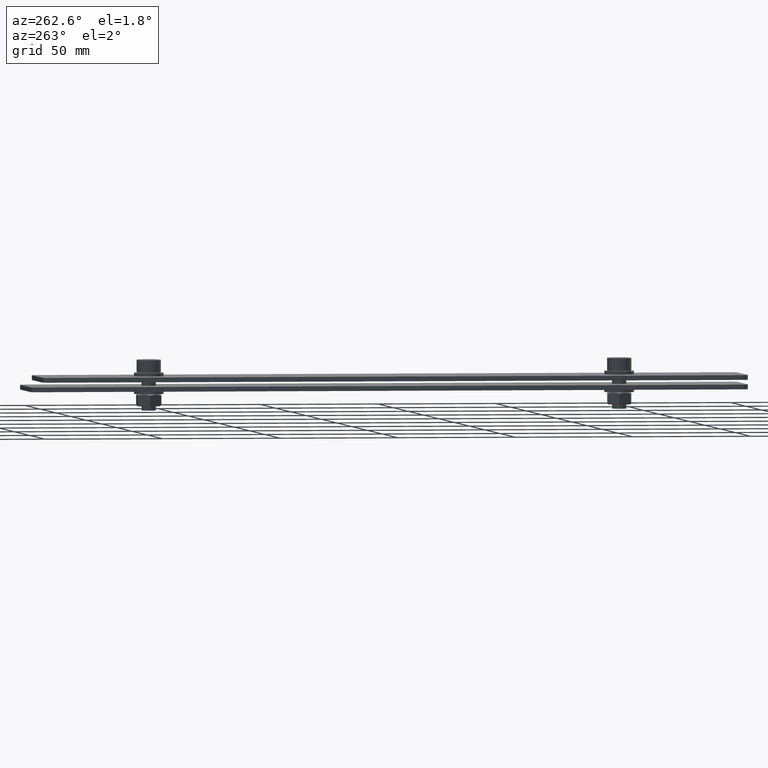
[diagram: clean part render]
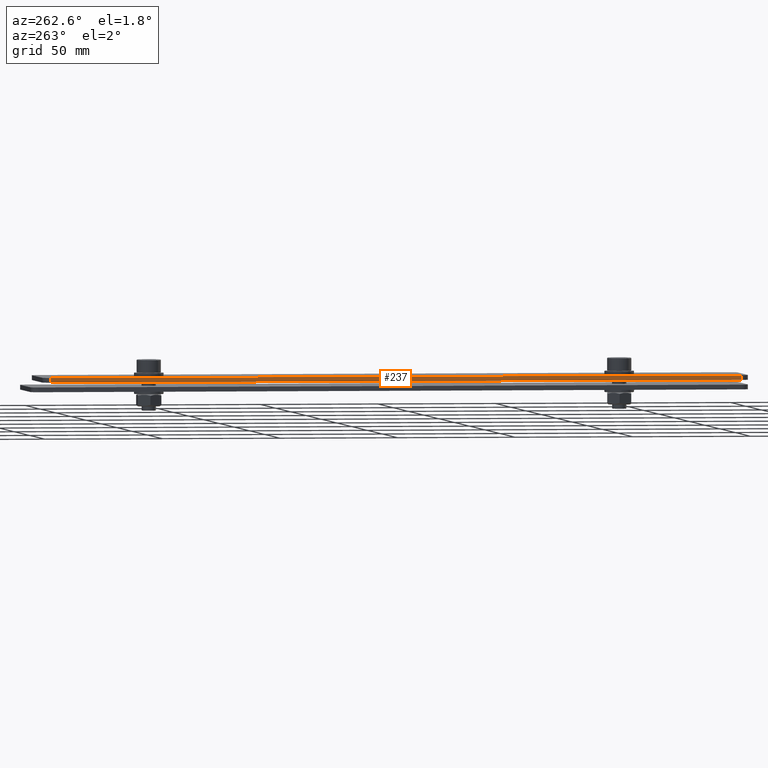
[diagram: same view with one face highlighted and labeled with its STEP entity id]
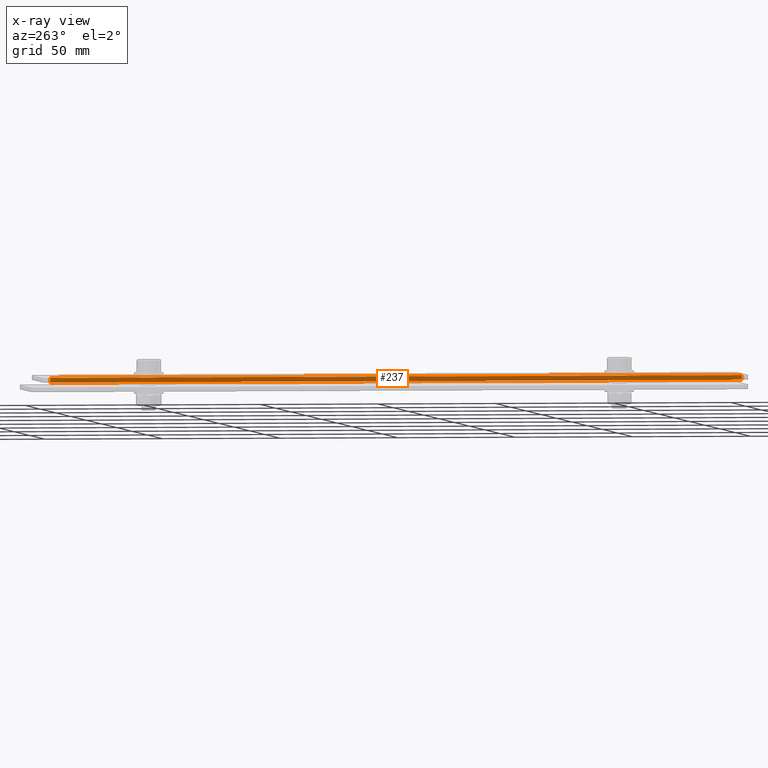
[diagram: x-ray of the same camera — body ghosted, the highlighted face saturated]
A machine part, auxiliary view. The second image highlights one B-rep face of the part: STEP entity #237.
The next image is the same camera in x-ray: the body ghosted, the highlighted face saturated — about 0% of this face is hidden behind the body in this view.
In plain terms, the highlighted planar face has unit normal (-1, 0, 0).
Its self-contained STEP definition (entity closure, byte-faithful):
#49 = CARTESIAN_POINT ( 'NONE',  ( -40.00000000000000000, -123.5000000000000000, 2.000000000000000444 ) ) ;
#54 = CARTESIAN_POINT ( 'NONE',  ( -40.00000000000000000, -123.5000000000000000, 4.000000000000000000 ) ) ;
#91 = VECTOR ( 'NONE', #1002, 1000.000000000000000 ) ;
#154 = VERTEX_POINT ( 'NONE', #54 ) ;
#237 = ADVANCED_FACE ( 'NONE', ( #1996 ), #416, .T. ) ;
#317 = VERTEX_POINT ( 'NONE', #1486 ) ;
#416 = PLANE ( 'NONE',  #1739 ) ;
#436 = LINE ( 'NONE', #2803, #1316 ) ;
#462 = DIRECTION ( 'NONE',  ( 3.813944420627395867E-17, -1.379055869979733316E-18, 1.000000000000000000 ) ) ;
#534 = DIRECTION ( 'NONE',  ( -1.000000000000000000, 1.266348137463069179E-16, 3.813944420627395867E-17 ) ) ;
#560 = VERTEX_POINT ( 'NONE', #2209 ) ;
#582 = VECTOR ( 'NONE', #2462, 1000.000000000000000 ) ;
#695 = ORIENTED_EDGE ( 'NONE', *, *, #1301, .F. ) ;
#1002 = DIRECTION ( 'NONE',  ( 1.266348137463069179E-16, 1.000000000000000000, 1.379055869979728501E-18 ) ) ;
#1012 = VECTOR ( 'NONE', #3672, 1000.000000000000000 ) ;
#1036 = CARTESIAN_POINT ( 'NONE',  ( -39.99999999999996447, 173.4000000000000057, 2.000000000000000888 ) ) ;
#1301 = EDGE_CURVE ( 'NONE', #560, #317, #436, .T. ) ;
#1316 = VECTOR ( 'NONE', #462, 1000.000000000000000 ) ;
#1320 = LINE ( 'NONE', #1573, #1012 ) ;
#1327 = ORIENTED_EDGE ( 'NONE', *, *, #3681, .F. ) ;
#1486 = CARTESIAN_POINT ( 'NONE',  ( -39.99999999999996447, 170.5000000000000000, 4.000000000000000888 ) ) ;
#1572 = EDGE_LOOP ( 'NONE', ( #3603, #1327, #2991, #695 ) ) ;
#1573 = CARTESIAN_POINT ( 'NONE',  ( -40.00000000000000000, -123.5000000000000000, 2.000000000000000444 ) ) ;
#1739 = AXIS2_PLACEMENT_3D ( 'NONE', #1036, #534, #2174 ) ;
#1996 = FACE_OUTER_BOUND ( 'NONE', #1572, .T. ) ;
#2086 = EDGE_CURVE ( 'NONE', #3497, #560, #2637, .T. ) ;
#2174 = DIRECTION ( 'NONE',  ( -3.813944420627395867E-17, 1.379055869979733316E-18, -1.000000000000000000 ) ) ;
#2209 = CARTESIAN_POINT ( 'NONE',  ( -39.99999999999996447, 170.5000000000000000, 2.000000000000000888 ) ) ;
#2462 = DIRECTION ( 'NONE',  ( 1.266348137463069179E-16, 1.000000000000000000, 1.379055869979728501E-18 ) ) ;
#2498 = CARTESIAN_POINT ( 'NONE',  ( -39.99999999999996447, 173.4000000000000057, 4.000000000000000888 ) ) ;
#2637 = LINE ( 'NONE', #2786, #91 ) ;
#2786 = CARTESIAN_POINT ( 'NONE',  ( -39.99999999999996447, 173.4000000000000057, 2.000000000000000888 ) ) ;
#2799 = LINE ( 'NONE', #2498, #582 ) ;
#2803 = CARTESIAN_POINT ( 'NONE',  ( -39.99999999999996447, 170.5000000000000000, 2.000000000000000888 ) ) ;
#2991 = ORIENTED_EDGE ( 'NONE', *, *, #3595, .T. ) ;
#3497 = VERTEX_POINT ( 'NONE', #49 ) ;
#3595 = EDGE_CURVE ( 'NONE', #154, #317, #2799, .T. ) ;
#3603 = ORIENTED_EDGE ( 'NONE', *, *, #2086, .F. ) ;
#3672 = DIRECTION ( 'NONE',  ( -3.813944420627395867E-17, 1.379055869979733316E-18, -1.000000000000000000 ) ) ;
#3681 = EDGE_CURVE ( 'NONE', #154, #3497, #1320, .T. ) ;